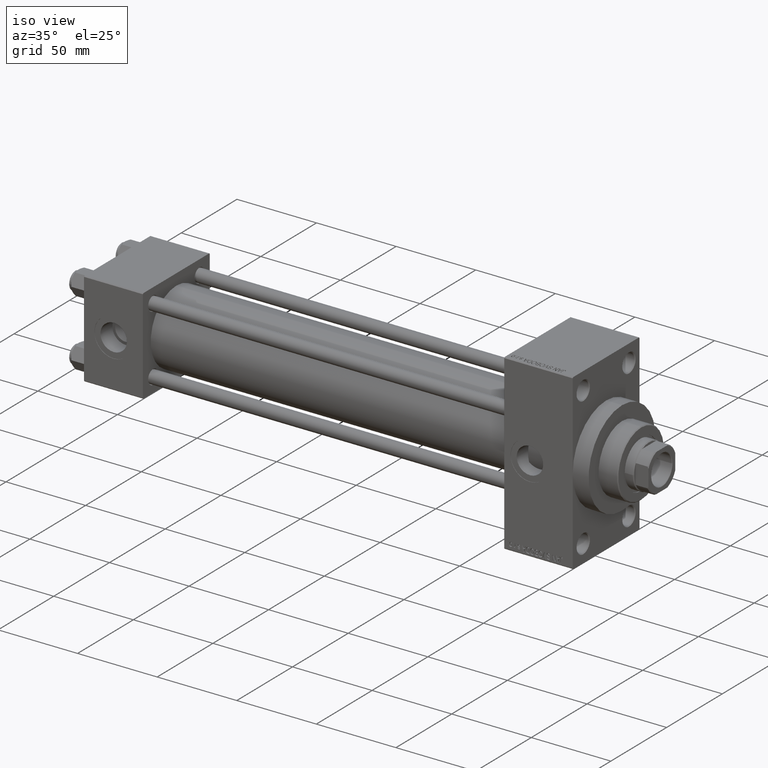
[diagram: clean part render]
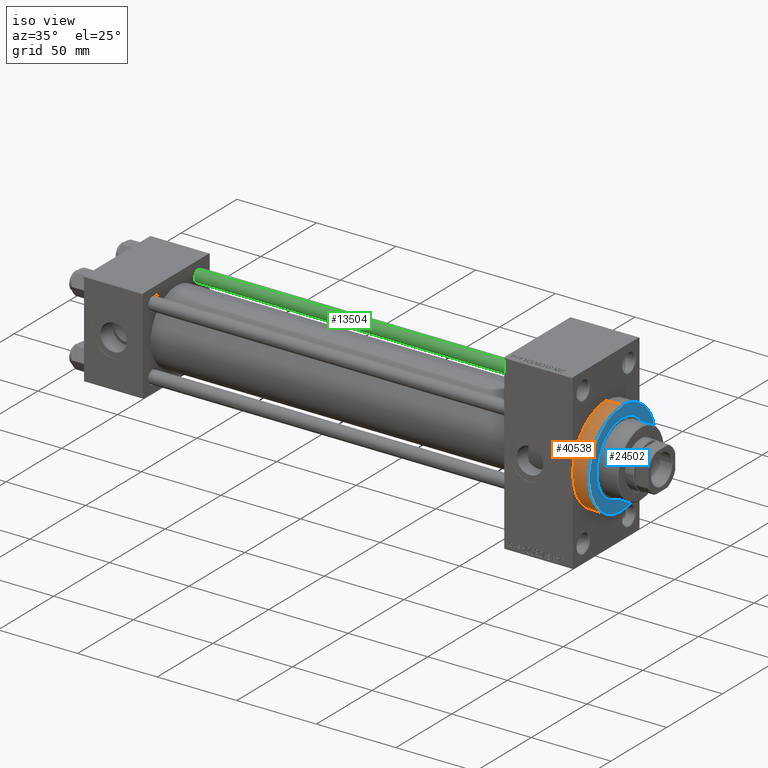
[diagram: same view with three faces highlighted in distinct colors, each labeled with its STEP entity id]
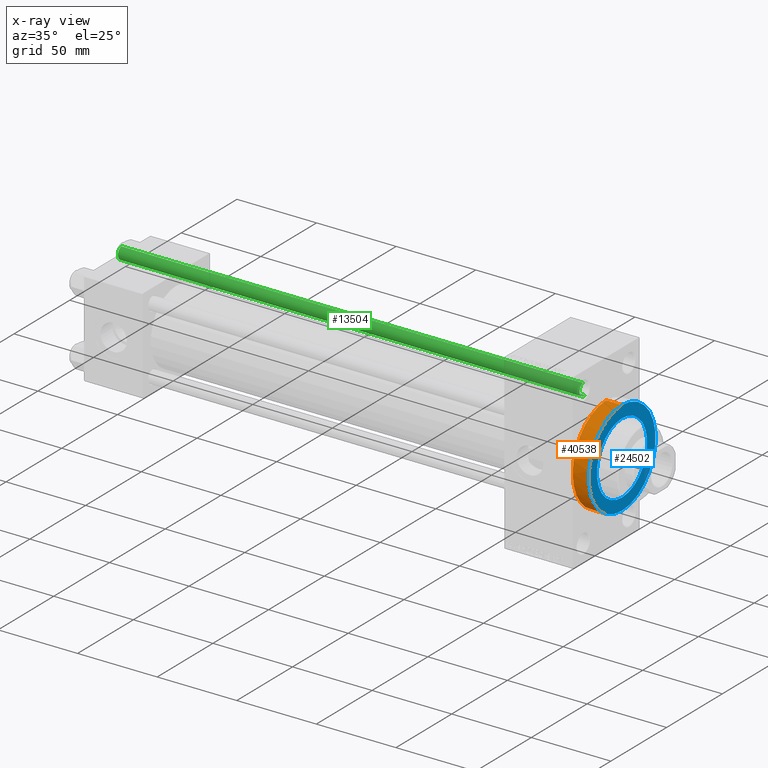
[diagram: x-ray of the same camera — body ghosted, the three highlighted faces saturated]
A machine part, iso view with three faces highlighted in distinct colors.
The next image is the same camera in x-ray (body ghosted, the three faces saturated) — at least one of them is partly hidden behind the body in this view.
Their STEP definitions:

[orange] entity #40538 — the highlighted cylindrical surface (partial cylindrical patch) has radius 30 mm, axis along (-1, -0, -0).
#1213 = ORIENTED_EDGE ( 'NONE', *, *, #28889, .F. ) ;
#2078 = EDGE_LOOP ( 'NONE', ( #1213, #5730, #34782, #34842, #26386 ) ) ;
#3990 = CARTESIAN_POINT ( 'NONE',  ( 317.0000000000000000, 0.000000000000000000, 30.00000000000000000 ) ) ;
#4710 = EDGE_CURVE ( 'NONE', #25413, #26427, #5716, .T. ) ;
#5043 = CARTESIAN_POINT ( 'NONE',  ( 307.0000000000000000, 0.000000000000000000, 30.00000000000000000 ) ) ;
#5716 = CIRCLE ( 'NONE', #37589, 30.00000000000000000 ) ;
#5730 = ORIENTED_EDGE ( 'NONE', *, *, #18842, .F. ) ;
#6369 = DIRECTION ( 'NONE',  ( -1.000000000000000000, -0.000000000000000000, -0.000000000000000000 ) ) ;
#7841 = VERTEX_POINT ( 'NONE', #18869 ) ;
#8215 = DIRECTION ( 'NONE',  ( -1.000000000000000000, -0.000000000000000000, -0.000000000000000000 ) ) ;
#9431 = CARTESIAN_POINT ( 'NONE',  ( 307.0000000000000000, 0.000000000000000000, 0.000000000000000000 ) ) ;
#11774 = AXIS2_PLACEMENT_3D ( 'NONE', #39844, #16656, #12901 ) ;
#12901 = DIRECTION ( 'NONE',  ( 0.000000000000000000, 0.000000000000000000, -1.000000000000000000 ) ) ;
#13338 = LINE ( 'NONE', #32316, #23972 ) ;
#14024 = CARTESIAN_POINT ( 'NONE',  ( 307.0000000000000000, -30.00000000000000000, 0.000000000000000000 ) ) ;
#15764 = CIRCLE ( 'NONE', #11774, 30.00000000000000000 ) ;
#16656 = DIRECTION ( 'NONE',  ( 1.000000000000000000, 0.000000000000000000, 0.000000000000000000 ) ) ;
#16875 = EDGE_CURVE ( 'NONE', #24859, #25413, #22716, .T. ) ;
#17180 = DIRECTION ( 'NONE',  ( 0.000000000000000000, 0.000000000000000000, -1.000000000000000000 ) ) ;
#17585 = DIRECTION ( 'NONE',  ( 1.000000000000000000, 0.000000000000000000, 0.000000000000000000 ) ) ;
#17863 = DIRECTION ( 'NONE',  ( 0.000000000000000000, 0.000000000000000000, 1.000000000000000000 ) ) ;
#17930 = VERTEX_POINT ( 'NONE', #38113 ) ;
#18842 = EDGE_CURVE ( 'NONE', #24859, #17930, #15764, .T. ) ;
#18869 = CARTESIAN_POINT ( 'NONE',  ( 307.0000000000000000, 3.673940397442059178E-15, -30.00000000000000000 ) ) ;
#19141 = CIRCLE ( 'NONE', #26302, 30.00000000000000000 ) ;
#22716 = LINE ( 'NONE', #3990, #29100 ) ;
#23627 = EDGE_CURVE ( 'NONE', #26427, #7841, #19141, .T. ) ;
#23972 = VECTOR ( 'NONE', #29051, 1000.000000000000000 ) ;
#24427 = CYLINDRICAL_SURFACE ( 'NONE', #45749, 30.00000000000000000 ) ;
#24859 = VERTEX_POINT ( 'NONE', #24869 ) ;
#24869 = CARTESIAN_POINT ( 'NONE',  ( 317.0000000000000000, 0.000000000000000000, 30.00000000000000000 ) ) ;
#24894 = DIRECTION ( 'NONE',  ( 1.000000000000000000, 0.000000000000000000, 0.000000000000000000 ) ) ;
#25413 = VERTEX_POINT ( 'NONE', #5043 ) ;
#25816 = CARTESIAN_POINT ( 'NONE',  ( 307.0000000000000000, 0.000000000000000000, 0.000000000000000000 ) ) ;
#26077 = CARTESIAN_POINT ( 'NONE',  ( 317.0000000000000000, 0.000000000000000000, 0.000000000000000000 ) ) ;
#26302 = AXIS2_PLACEMENT_3D ( 'NONE', #9431, #24894, #17180 ) ;
#26386 = ORIENTED_EDGE ( 'NONE', *, *, #23627, .T. ) ;
#26427 = VERTEX_POINT ( 'NONE', #14024 ) ;
#28889 = EDGE_CURVE ( 'NONE', #17930, #7841, #13338, .T. ) ;
#29051 = DIRECTION ( 'NONE',  ( -1.000000000000000000, -0.000000000000000000, -0.000000000000000000 ) ) ;
#29100 = VECTOR ( 'NONE', #8215, 1000.000000000000000 ) ;
#32316 = CARTESIAN_POINT ( 'NONE',  ( 317.0000000000000000, 3.673940397442059178E-15, -30.00000000000000000 ) ) ;
#34782 = ORIENTED_EDGE ( 'NONE', *, *, #16875, .T. ) ;
#34842 = ORIENTED_EDGE ( 'NONE', *, *, #4710, .T. ) ;
#37288 = DIRECTION ( 'NONE',  ( 0.000000000000000000, 0.000000000000000000, -1.000000000000000000 ) ) ;
#37589 = AXIS2_PLACEMENT_3D ( 'NONE', #25816, #17585, #37288 ) ;
#38113 = CARTESIAN_POINT ( 'NONE',  ( 317.0000000000000000, 3.673940397442059178E-15, -30.00000000000000000 ) ) ;
#39844 = CARTESIAN_POINT ( 'NONE',  ( 317.0000000000000000, 0.000000000000000000, 0.000000000000000000 ) ) ;
#40538 = ADVANCED_FACE ( 'NONE', ( #45013 ), #24427, .T. ) ;
#45013 = FACE_OUTER_BOUND ( 'NONE', #2078, .T. ) ;
#45749 = AXIS2_PLACEMENT_3D ( 'NONE', #26077, #6369, #17863 ) ;

[blue] entity #24502 — the highlighted planar face has unit normal (1, 0, 0).
#1103 = AXIS2_PLACEMENT_3D ( 'NONE', #5287, #16018, #19993 ) ;
#2185 = EDGE_CURVE ( 'NONE', #49178, #35836, #40632, .T. ) ;
#3940 = DIRECTION ( 'NONE',  ( 1.000000000000000000, 0.000000000000000000, 0.000000000000000000 ) ) ;
#4807 = DIRECTION ( 'NONE',  ( 0.000000000000000000, 0.000000000000000000, -1.000000000000000000 ) ) ;
#5287 = CARTESIAN_POINT ( 'NONE',  ( 317.0000000000000000, 0.000000000000000000, 0.000000000000000000 ) ) ;
#5565 = DIRECTION ( 'NONE',  ( 1.000000000000000000, 0.000000000000000000, 0.000000000000000000 ) ) ;
#8448 = CARTESIAN_POINT ( 'NONE',  ( 317.0000000000000000, 0.000000000000000000, 0.000000000000000000 ) ) ;
#9196 = DIRECTION ( 'NONE',  ( 0.000000000000000000, 0.000000000000000000, -1.000000000000000000 ) ) ;
#11774 = AXIS2_PLACEMENT_3D ( 'NONE', #39844, #16656, #12901 ) ;
#12901 = DIRECTION ( 'NONE',  ( 0.000000000000000000, 0.000000000000000000, -1.000000000000000000 ) ) ;
#13858 = EDGE_CURVE ( 'NONE', #17930, #24859, #16249, .T. ) ;
#15764 = CIRCLE ( 'NONE', #11774, 30.00000000000000000 ) ;
#16018 = DIRECTION ( 'NONE',  ( 1.000000000000000000, 0.000000000000000000, 0.000000000000000000 ) ) ;
#16050 = CARTESIAN_POINT ( 'NONE',  ( 317.0000000000000000, 0.000000000000000000, 0.000000000000000000 ) ) ;
#16249 = CIRCLE ( 'NONE', #1103, 30.00000000000000000 ) ;
#16656 = DIRECTION ( 'NONE',  ( 1.000000000000000000, 0.000000000000000000, 0.000000000000000000 ) ) ;
#17930 = VERTEX_POINT ( 'NONE', #38113 ) ;
#18842 = EDGE_CURVE ( 'NONE', #24859, #17930, #15764, .T. ) ;
#19251 = EDGE_LOOP ( 'NONE', ( #38591, #46049 ) ) ;
#19673 = FACE_BOUND ( 'NONE', #19251, .T. ) ;
#19993 = DIRECTION ( 'NONE',  ( 0.000000000000000000, 0.000000000000000000, -1.000000000000000000 ) ) ;
#20164 = PLANE ( 'NONE',  #45433 ) ;
#22889 = AXIS2_PLACEMENT_3D ( 'NONE', #16050, #5565, #4807 ) ;
#24158 = FACE_OUTER_BOUND ( 'NONE', #43793, .T. ) ;
#24502 = ADVANCED_FACE ( 'NONE', ( #19673, #24158 ), #20164, .T. ) ;
#24859 = VERTEX_POINT ( 'NONE', #24869 ) ;
#24869 = CARTESIAN_POINT ( 'NONE',  ( 317.0000000000000000, 0.000000000000000000, 30.00000000000000000 ) ) ;
#25512 = AXIS2_PLACEMENT_3D ( 'NONE', #33896, #3940, #30863 ) ;
#29030 = CARTESIAN_POINT ( 'NONE',  ( 317.0000000000000000, 0.000000000000000000, -22.50000000000000355 ) ) ;
#30863 = DIRECTION ( 'NONE',  ( 0.000000000000000000, 0.000000000000000000, -1.000000000000000000 ) ) ;
#33896 = CARTESIAN_POINT ( 'NONE',  ( 317.0000000000000000, 0.000000000000000000, 0.000000000000000000 ) ) ;
#35836 = VERTEX_POINT ( 'NONE', #29030 ) ;
#38113 = CARTESIAN_POINT ( 'NONE',  ( 317.0000000000000000, 3.673940397442059178E-15, -30.00000000000000000 ) ) ;
#38591 = ORIENTED_EDGE ( 'NONE', *, *, #44311, .F. ) ;
#38869 = DIRECTION ( 'NONE',  ( 1.000000000000000000, 0.000000000000000000, 0.000000000000000000 ) ) ;
#39844 = CARTESIAN_POINT ( 'NONE',  ( 317.0000000000000000, 0.000000000000000000, 0.000000000000000000 ) ) ;
#40632 = CIRCLE ( 'NONE', #25512, 22.50000000000000355 ) ;
#40717 = CARTESIAN_POINT ( 'NONE',  ( 317.0000000000000000, 2.755455298081545172E-15, 22.50000000000000355 ) ) ;
#41986 = ORIENTED_EDGE ( 'NONE', *, *, #13858, .T. ) ;
#43793 = EDGE_LOOP ( 'NONE', ( #44579, #41986 ) ) ;
#44311 = EDGE_CURVE ( 'NONE', #35836, #49178, #45980, .T. ) ;
#44579 = ORIENTED_EDGE ( 'NONE', *, *, #18842, .T. ) ;
#45433 = AXIS2_PLACEMENT_3D ( 'NONE', #8448, #38869, #9196 ) ;
#45980 = CIRCLE ( 'NONE', #22889, 22.50000000000000355 ) ;
#46049 = ORIENTED_EDGE ( 'NONE', *, *, #2185, .F. ) ;
#49178 = VERTEX_POINT ( 'NONE', #40717 ) ;

[green] entity #13504 — the highlighted cylindrical surface (edge-blend (fillet) strip) has radius 4 mm, axis along (-1, -0, 0).
#185 = DIRECTION ( 'NONE',  ( 1.000000000000000000, 0.000000000000000000, 0.000000000000000000 ) ) ;
#436 = CARTESIAN_POINT ( 'NONE',  ( 0.000000000000000000, 0.000000000000000000, 290.4999999999999432 ) ) ;
#1180 = VECTOR ( 'NONE', #45101, 1000.000000000000000 ) ;
#2977 = CARTESIAN_POINT ( 'NONE',  ( 0.000000000000000000, 0.000000000000000000, 291.0000000000000000 ) ) ;
#3429 = CARTESIAN_POINT ( 'NONE',  ( -4.000000000000000000, 0.000000000000000000, 290.4999999999999432 ) ) ;
#6719 = CYLINDRICAL_SURFACE ( 'NONE', #45704, 4.000000000000000000 ) ;
#8160 = EDGE_LOOP ( 'NONE', ( #11957, #41179, #19121, #37187 ) ) ;
#10342 = CARTESIAN_POINT ( 'NONE',  ( 4.000000000000000000, 4.898587196589412829E-16, 290.4999999999999432 ) ) ;
#10709 = LINE ( 'NONE', #41358, #1180 ) ;
#11957 = ORIENTED_EDGE ( 'NONE', *, *, #40502, .F. ) ;
#12140 = VERTEX_POINT ( 'NONE', #10342 ) ;
#12252 = CIRCLE ( 'NONE', #32220, 4.000000000000000000 ) ;
#12281 = VECTOR ( 'NONE', #16944, 1000.000000000000000 ) ;
#12799 = DIRECTION ( 'NONE',  ( 1.000000000000000000, 0.000000000000000000, 0.000000000000000000 ) ) ;
#13504 = ADVANCED_FACE ( 'NONE', ( #40877 ), #6719, .T. ) ;
#14603 = LINE ( 'NONE', #40535, #12281 ) ;
#15154 = EDGE_CURVE ( 'NONE', #39366, #33369, #10709, .T. ) ;
#15639 = DIRECTION ( 'NONE',  ( 0.000000000000000000, 0.000000000000000000, -1.000000000000000000 ) ) ;
#16944 = DIRECTION ( 'NONE',  ( -0.000000000000000000, -0.000000000000000000, -1.000000000000000000 ) ) ;
#18197 = DIRECTION ( 'NONE',  ( -1.000000000000000000, 0.000000000000000000, 0.000000000000000000 ) ) ;
#19121 = ORIENTED_EDGE ( 'NONE', *, *, #15154, .T. ) ;
#22459 = VERTEX_POINT ( 'NONE', #40936 ) ;
#32220 = AXIS2_PLACEMENT_3D ( 'NONE', #45810, #46961, #12799 ) ;
#33369 = VERTEX_POINT ( 'NONE', #47092 ) ;
#36808 = EDGE_CURVE ( 'NONE', #33369, #22459, #12252, .T. ) ;
#37187 = ORIENTED_EDGE ( 'NONE', *, *, #36808, .T. ) ;
#39366 = VERTEX_POINT ( 'NONE', #3429 ) ;
#40502 = EDGE_CURVE ( 'NONE', #12140, #22459, #14603, .T. ) ;
#40535 = CARTESIAN_POINT ( 'NONE',  ( 4.000000000000000000, 4.898587196589412829E-16, 291.0000000000000000 ) ) ;
#40877 = FACE_OUTER_BOUND ( 'NONE', #8160, .T. ) ;
#40936 = CARTESIAN_POINT ( 'NONE',  ( 4.000000000000000000, 4.898587196589412829E-16, 0.5000000000000559552 ) ) ;
#41179 = ORIENTED_EDGE ( 'NONE', *, *, #48673, .T. ) ;
#41358 = CARTESIAN_POINT ( 'NONE',  ( -4.000000000000000000, 0.000000000000000000, 291.0000000000000000 ) ) ;
#41716 = CIRCLE ( 'NONE', #45662, 4.000000000000000000 ) ;
#45101 = DIRECTION ( 'NONE',  ( -0.000000000000000000, -0.000000000000000000, -1.000000000000000000 ) ) ;
#45662 = AXIS2_PLACEMENT_3D ( 'NONE', #436, #15639, #185 ) ;
#45704 = AXIS2_PLACEMENT_3D ( 'NONE', #2977, #48842, #18197 ) ;
#45810 = CARTESIAN_POINT ( 'NONE',  ( 0.000000000000000000, 0.000000000000000000, 0.5000000000000559552 ) ) ;
#46961 = DIRECTION ( 'NONE',  ( -0.000000000000000000, -0.000000000000000000, 1.000000000000000000 ) ) ;
#47092 = CARTESIAN_POINT ( 'NONE',  ( -4.000000000000000000, 0.000000000000000000, 0.5000000000000559552 ) ) ;
#48673 = EDGE_CURVE ( 'NONE', #12140, #39366, #41716, .T. ) ;
#48842 = DIRECTION ( 'NONE',  ( -0.000000000000000000, -0.000000000000000000, -1.000000000000000000 ) ) ;